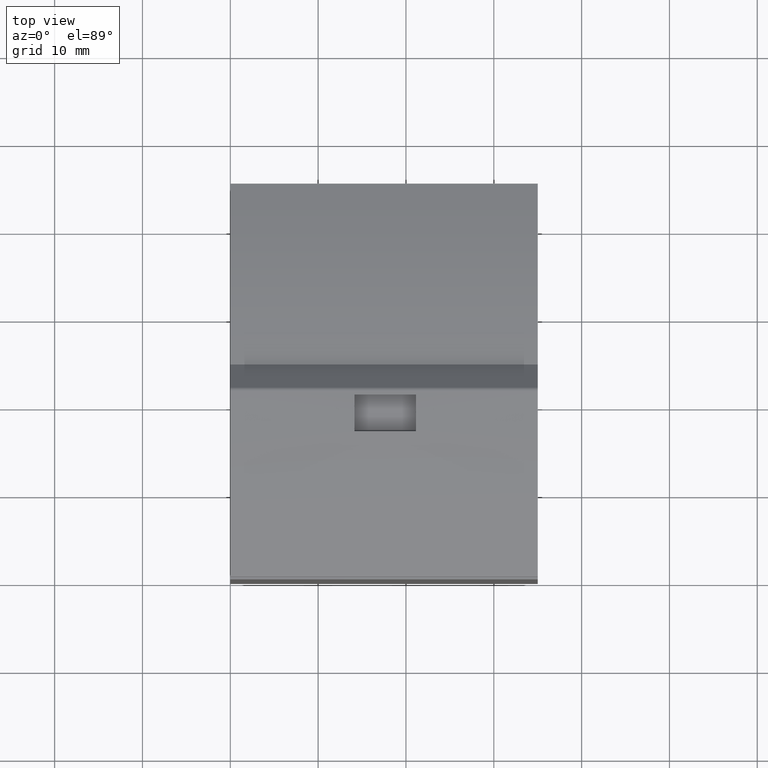
[diagram: clean part render]
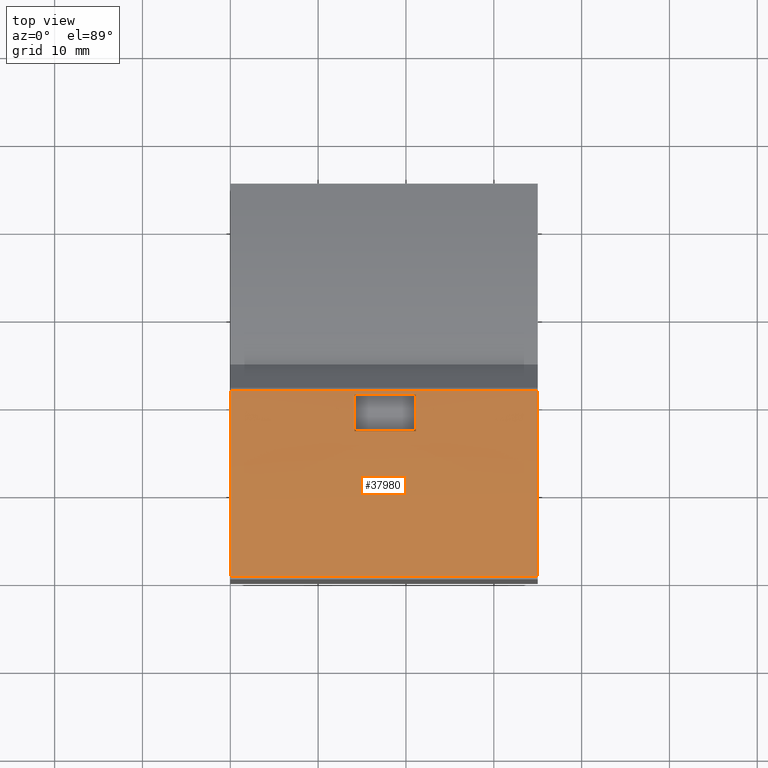
[diagram: same view with one face highlighted and labeled with its STEP entity id]
A machine part, top view. The second image highlights one B-rep face of the part: STEP entity #37980.
In plain terms, the highlighted cylindrical surface (partial cylindrical patch) has radius 71.8 mm, axis along (1, 0, -0).
Its self-contained STEP definition (entity closure, byte-faithful):
#780=CARTESIAN_POINT('',(139.910520806766,217.765767370715,
97.302371659616));
#790=VERTEX_POINT('',#780);
#820=CARTESIAN_POINT('',(138.620116580356,145.977364011033,
97.302371659616));
#830=DIRECTION('',(1.16201844070816E-20,-7.51442445056162E-19,-1.));
#840=DIRECTION('',(-1.,-1.20996962449382E-16,-1.16201844070815E-20));
#850=AXIS2_PLACEMENT_3D('',#820,#830,#840);
#860=CIRCLE('',#850,71.8);
#870=CARTESIAN_POINT('',(161.020116580356,214.193784321688,
97.3023716596159));
#880=VERTEX_POINT('',#870);
#890=EDGE_CURVE('',#790,#880,#860,.T.);
#2460=CARTESIAN_POINT('',(161.020116580356,214.193784321688,
62.3021431980011));
#2470=VERTEX_POINT('',#2460);
#2500=CARTESIAN_POINT('',(138.620116580356,145.977364011033,
62.3021431980011));
#2510=DIRECTION('',(1.16201844070816E-20,-7.51442445056162E-19,-1.));
#2520=DIRECTION('',(-1.,-1.20996962449382E-16,-1.16201844070815E-20));
#2530=AXIS2_PLACEMENT_3D('',#2500,#2510,#2520);
#2540=CIRCLE('',#2530,71.8);
#2550=CARTESIAN_POINT('',(139.910520806766,217.765767370715,
62.3021431980011));
#2560=VERTEX_POINT('',#2550);
#2570=EDGE_CURVE('',#2560,#2470,#2540,.T.);
#22100=CARTESIAN_POINT('',(139.910520806766,217.765767370715,
65.2021431980011));
#22110=DIRECTION('',(-1.16201844070816E-20,7.51442445056162E-19,1.));
#22120=VECTOR('',#22110,1.);
#22130=LINE('',#22100,#22120);
#22140=EDGE_CURVE('',#2560,#790,#22130,.T.);
#36810=CARTESIAN_POINT('',(140.350550830629,217.756508595693,
76.1550030439335));
#36820=VERTEX_POINT('',#36810);
#36990=CARTESIAN_POINT('',(140.350550830629,217.756508595693,
83.1896701048492));
#37000=VERTEX_POINT('',#36990);
#37030=CARTESIAN_POINT('',(140.350550830629,217.756508595693,
65.2021431980011));
#37040=DIRECTION('',(1.16201844070816E-20,-7.51442445056162E-19,-1.));
#37050=VECTOR('',#37040,1.);
#37060=LINE('',#37030,#37050);
#37070=EDGE_CURVE('',#37000,#36820,#37060,.T.);
#37190=CARTESIAN_POINT('',(138.620116580356,145.977364011033,
65.2021431980011));
#37200=DIRECTION('',(1.16201844070816E-20,-7.51442445056162E-19,-1.));
#37210=DIRECTION('',(-1.,-1.20996962449382E-16,-1.16201844070815E-20));
#37220=AXIS2_PLACEMENT_3D('',#37190,#37200,#37210);
#37230=CYLINDRICAL_SURFACE('',#37220,71.8);
#37240=CARTESIAN_POINT('',(161.020116580356,214.193784321688,
65.2021431980011));
#37250=DIRECTION('',(1.16201844070816E-20,-7.51442445056162E-19,-1.));
#37260=VECTOR('',#37250,1.);
#37270=LINE('',#37240,#37260);
#37280=EDGE_CURVE('',#880,#2470,#37270,.T.);
#37290=ORIENTED_EDGE('',*,*,#37280,.T.);
#37300=ORIENTED_EDGE('',*,*,#890,.T.);
#37310=ORIENTED_EDGE('',*,*,#22140,.T.);
#37320=ORIENTED_EDGE('',*,*,#2570,.F.);
#37330=EDGE_LOOP('',(#37320,#37310,#37300,#37290));
#37340=FACE_OUTER_BOUND('',#37330,.T.);
#37350=CARTESIAN_POINT('',(144.509689401024,217.535402916456,
65.2021431980011));
#37360=DIRECTION('',(1.16201844070816E-20,-7.51442445056162E-19,-1.));
#37370=VECTOR('',#37360,1.);
#37380=LINE('',#37350,#37370);
#37390=CARTESIAN_POINT('',(144.509689401024,217.535402916456,
83.1668932471099));
#37400=VERTEX_POINT('',#37390);
#37410=CARTESIAN_POINT('',(144.509689401024,217.535402916456,
76.1773626287854));
#37420=VERTEX_POINT('',#37410);
#37430=EDGE_CURVE('',#37400,#37420,#37380,.T.);
#37440=ORIENTED_EDGE('',*,*,#37430,.F.);
#37450=CARTESIAN_POINT('',(144.511007805516,217.558650214818,
76.1773626287854));
#37460=CARTESIAN_POINT('',(143.125196174147,217.637242585056,
76.1663112918341));
#37470=CARTESIAN_POINT('',(141.738511663593,217.715884458157,
76.158854960597));
#37480=CARTESIAN_POINT('',(140.352704078085,217.794476598946,
76.1550030439335));
#37490=B_SPLINE_CURVE_WITH_KNOTS('',3,(#37450,#37460,#37470,#37480),
.UNSPECIFIED.,.F.,.F.,(4,4),(0.,1.),.UNSPECIFIED.);
#37500=DIRECTION('',(-0.0566211780987282,-0.998395734261076,
7.49578983155922E-19));
#37510=VECTOR('',#37500,1.);
#37520=SURFACE_OF_LINEAR_EXTRUSION('',#37490,#37510);
#37530=CARTESIAN_POINT('',(140.350550830629,217.756508595693,
76.1550030439335));
#37540=CARTESIAN_POINT('',(140.697574760008,217.748142626768,
76.1559658352577));
#37550=CARTESIAN_POINT('',(141.044556115952,217.73725950089,
76.1571539519183));
#37560=CARTESIAN_POINT('',(141.391439735477,217.723860566404,
76.1585672734273));
#37570=CARTESIAN_POINT('',(141.738323354938,217.710461631921,
76.1599805949361));
#37580=CARTESIAN_POINT('',(142.085109202766,217.694546890184,
76.1616191211466));
#37590=CARTESIAN_POINT('',(142.43174217711,217.676119302252,
76.1634825871462));
#37600=CARTESIAN_POINT('',(142.778372739275,217.657691842557,
76.1653460401782));
#37610=CARTESIAN_POINT('',(143.12488663734,217.636749650717,
76.1674346241612));
#37620=CARTESIAN_POINT('',(143.471229579146,217.613295656213,
76.1697480775187));
#37630=CARTESIAN_POINT('',(143.817572455253,217.589841666159,
76.1720615304374));
#37640=CARTESIAN_POINT('',(144.163744057467,217.563875892016,
76.1745998508756));
#37650=CARTESIAN_POINT('',(144.509689401024,217.535402916456,
76.1773626287854));
#37660=B_SPLINE_CURVE_WITH_KNOTS('',3,(#37530,#37540,#37550,#37560,
#37570,#37580,#37590,#37600,#37610,#37620,#37630,#37640,#37650),
.UNSPECIFIED.,.F.,.F.,(4,3,3,3,4),(0.,1.04141609124569,2.08283422225413,
3.12424638349553,4.16566043413297),.UNSPECIFIED.);
#37670=SURFACE_CURVE('',#37660,(#37230,#37520),.CURVE_3D.);
#37680=EDGE_CURVE('',#36820,#37420,#37670,.T.);
#37690=ORIENTED_EDGE('',*,*,#37680,.T.);
#37700=ORIENTED_EDGE('',*,*,#37070,.T.);
#37710=CARTESIAN_POINT('',(140.352704078085,217.794476598946,
83.1896701048492));
#37720=CARTESIAN_POINT('',(141.738511663593,217.715884458157,
83.1856801750059));
#37730=CARTESIAN_POINT('',(143.125196174147,217.637242585056,
83.1780846942771));
#37740=CARTESIAN_POINT('',(144.511007805516,217.558650214818,
83.1668932471099));
#37750=B_SPLINE_CURVE_WITH_KNOTS('',3,(#37710,#37720,#37730,#37740),
.UNSPECIFIED.,.F.,.F.,(4,4),(0.,1.),.UNSPECIFIED.);
#37760=DIRECTION('',(-0.0566211780987282,-0.998395734261076,
7.49578983155922E-19));
#37770=VECTOR('',#37760,1.);
#37780=SURFACE_OF_LINEAR_EXTRUSION('',#37750,#37770);
#37790=CARTESIAN_POINT('',(144.509689401024,217.535402916456,
83.1668932471099));
#37800=CARTESIAN_POINT('',(144.163744149566,217.563875884435,
83.1696910511148));
#37810=CARTESIAN_POINT('',(143.817572622238,217.58984165376,
83.1722643408183));
#37820=CARTESIAN_POINT('',(143.471229803899,217.613295640993,
83.1746127005453));
#37830=CARTESIAN_POINT('',(143.124886917595,217.63674963283,
83.1769610607331));
#37840=CARTESIAN_POINT('',(142.778373067667,217.657691823443,
83.1790844890005));
#37850=CARTESIAN_POINT('',(142.431742518701,217.676119284093,
83.1809827184185));
#37860=CARTESIAN_POINT('',(142.085109521511,217.694546874895,
83.1828809612436));
#37870=CARTESIAN_POINT('',(141.738323633638,217.710461620082,
83.1845541998567));
#37880=CARTESIAN_POINT('',(141.391439957168,217.723860557841,
83.1860021637581));
#37890=CARTESIAN_POINT('',(141.044556280635,217.737259495602,
83.1874501276598));
#37900=CARTESIAN_POINT('',(140.697574850718,217.748142624581,
83.1886728166997));
#37910=CARTESIAN_POINT('',(140.350550830629,217.756508595693,
83.1896701048492));
#37920=B_SPLINE_CURVE_WITH_KNOTS('',3,(#37790,#37800,#37810,#37820,
#37830,#37840,#37850,#37860,#37870,#37880,#37890,#37900,#37910),
.UNSPECIFIED.,.F.,.F.,(4,3,3,3,4),(0.,1.04141459771474,2.08282727631398,
3.12424602427029,4.16566269753252),.UNSPECIFIED.);
#37930=SURFACE_CURVE('',#37920,(#37230,#37780),.CURVE_3D.);
#37940=EDGE_CURVE('',#37400,#37000,#37930,.T.);
#37950=ORIENTED_EDGE('',*,*,#37940,.T.);
#37960=EDGE_LOOP('',(#37950,#37700,#37690,#37440));
#37970=FACE_BOUND('',#37960,.T.);
#37980=ADVANCED_FACE('',(#37340,#37970),#37230,.T.);